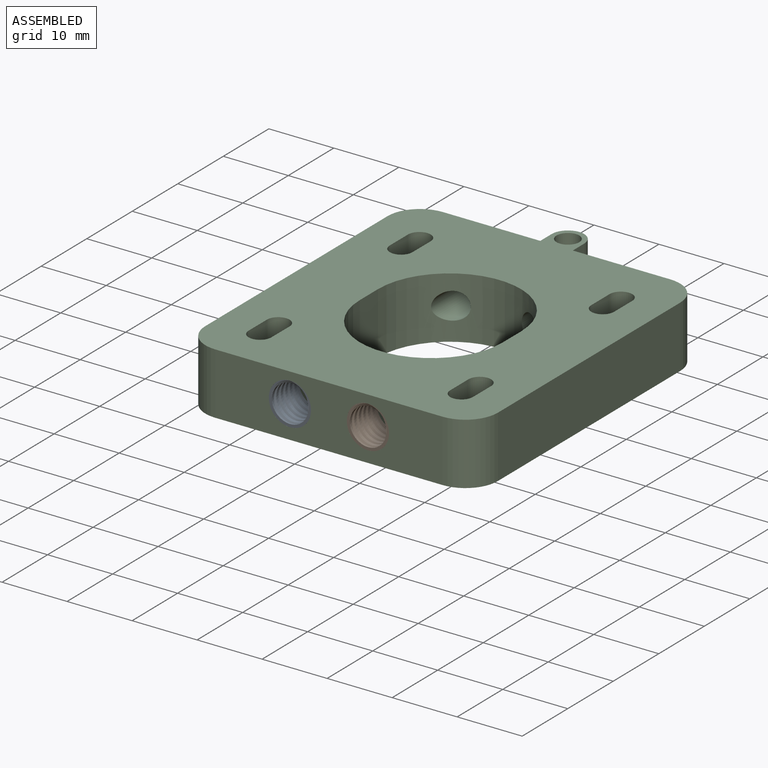
[diagram: assembled view]
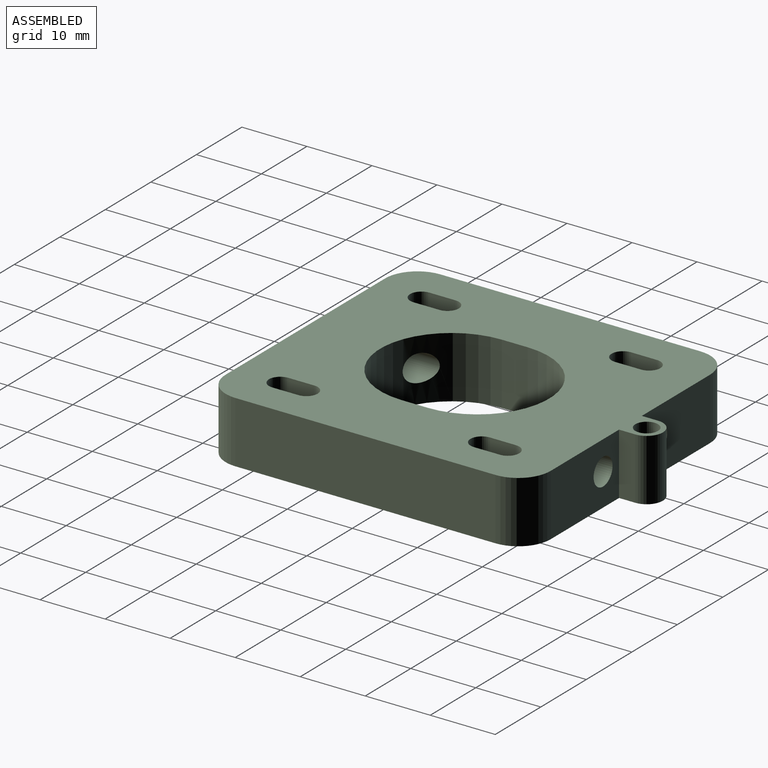
[diagram: assembled view, second angle]
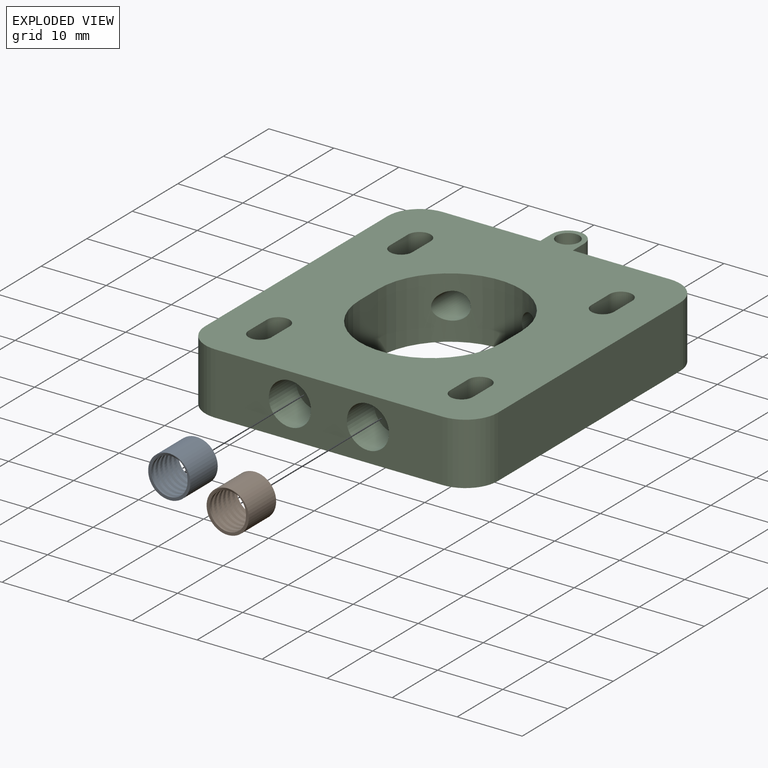
[diagram: exploded view]
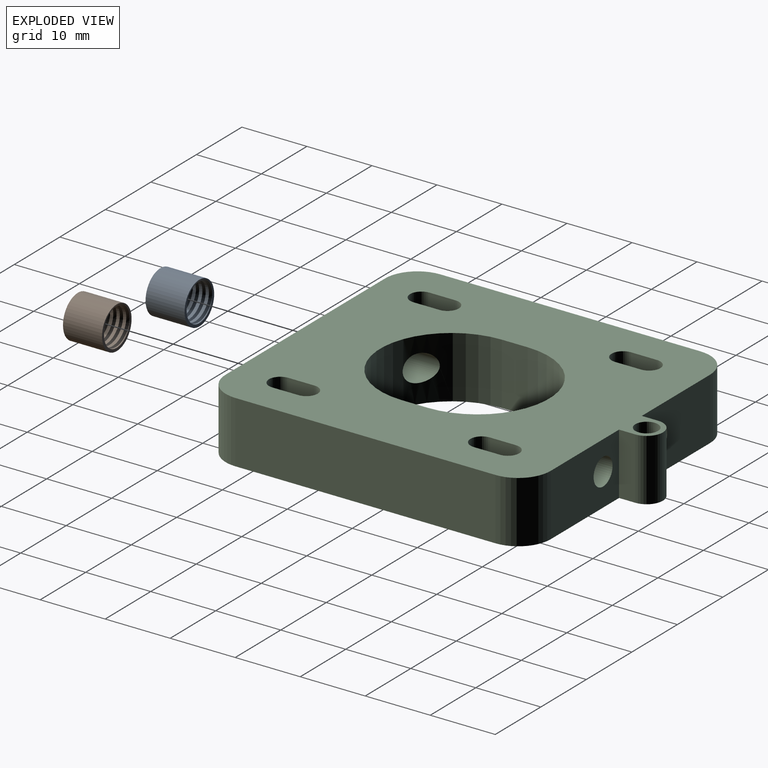
[diagram: exploded view, second angle]
ASSEMBLY  parts=3 mates=2
PART A: 6 faces, bbox 6.7x7.6x6.8 mm
  f0: cylinder r=2.8mm len=6mm, axis (0,0,-1), area 52.8mm2, adj f2,f3,f4,f5
  f1: cylinder r=3.25mm len=6.5mm, axis (0,0,-1), area 122.5mm2, adj f2,f3
  f2: plane 6.66x6.66mm, normal (0,0,1), area 6.6mm2, adj f0,f1,f4,f5
  f3: plane 6.66x6.66mm, normal (0,0,-1), area 6.6mm2, adj f0,f1,f4,f5
  f4: bspline ~7.47x6.58mm, area 57mm2, adj f0,f2,f3,f5
  f5: bspline ~7.47x6.58mm, area 56.9mm2, adj f0,f2,f3,f4
PART B: same geometry as A
PART C: 43 faces, bbox 45x55x9.5 mm
  f0: cylinder r=2.08mm len=9.03mm, axis (0,1,0), area 97.2mm2, adj f33,f41
  f1: cylinder r=2.08mm len=9.03mm, axis (0,1,0), area 97.2mm2, adj f33,f39
  f2: cylinder r=1.75mm len=9.5mm, axis (0,0,-1), area 52.2mm2, adj f3,f34,f35,f36
  f3: plane 9.5x4mm, normal (-1,0,0), area 38mm2, adj f2,f4,f35,f36
  f4: cylinder r=1.75mm len=9.5mm, axis (0,0,-1), area 52.2mm2, adj f3,f34,f35,f36
  f5: cylinder r=1.75mm len=9.5mm, axis (0,0,-1), area 52.2mm2, adj f6,f28,f35,f36
  f6: plane 9.5x4mm, normal (-1,0,0), area 38mm2, adj f5,f7,f35,f36
  f7: cylinder r=1.75mm len=9.5mm, axis (0,0,-1), area 52.2mm2, adj f6,f28,f35,f36
  f8: cylinder r=1.75mm len=9.5mm, axis (0,0,-1), area 52.2mm2, adj f9,f29,f35,f36
  f9: plane 9.5x4mm, normal (-1,0,0), area 38mm2, adj f8,f10,f35,f36
  f10: cylinder r=1.75mm len=9.5mm, axis (0,0,-1), area 52.2mm2, adj f9,f29,f35,f36
  f11: plane 40x9.5mm, normal (-1,0,0), area 380mm2, adj f12,f31,f35,f36
  f12: cylinder r=5mm len=9.5mm, axis (0,0,-1), area 74.6mm2, adj f11,f13,f35,f36
  f13: plane 35x9.5mm, normal (0,-1,0), area 266.1mm2, adj f12,f14,f35,f36,f40,f42
  f14: cylinder r=5mm len=9.5mm, axis (0,0,-1), area 74.6mm2, adj f13,f15,f35,f36
  f15: plane 40x9.5mm, normal (1,0,0), area 380mm2, adj f14,f16,f35,f36
  f16: cylinder r=5mm len=9.5mm, axis (0,0,-1), area 74.6mm2, adj f15,f17,f35,f36
  f17: plane 15x9.5mm, normal (0,1,0), area 129mm2, adj f16,f18,f35,f36,f37
  f18: plane 9.5x2.5mm, normal (1,0,0), area 23.7mm2, adj f17,f19,f35,f36
  f19: cylinder r=2.5mm len=9.5mm, axis (0,0,-1), area 74.6mm2, adj f18,f20,f35,f36
  f20: plane 9.5x2.5mm, normal (-1,0,0), area 23.7mm2, adj f19,f21,f35,f36
  f21: plane 15x9.5mm, normal (0,1,0), area 129mm2, adj f20,f31,f35,f36,f38
  f22: plane 9.5x4mm, normal (1,0,0), area 38mm2, adj f23,f32,f35,f36
  f23: cylinder r=1.75mm len=9.5mm, axis (0,0,-1), area 52.2mm2, adj f22,f24,f35,f36
  f24: plane 9.5x4mm, normal (-1,0,0), area 38mm2, adj f23,f32,f35,f36
  f25: plane 9.5x4mm, normal (1,0,0), area 38mm2, adj f26,f33,f35,f36
  f26: cylinder r=11mm len=22mm, axis (0,0,-1), area 295.5mm2, adj f25,f27,f35,f36,f37,f38
  f27: plane 9.5x4mm, normal (-1,0,0), area 38mm2, adj f26,f33,f35,f36
  f28: plane 9.5x4mm, normal (1,0,0), area 38mm2, adj f5,f7,f35,f36
  f29: plane 9.5x4mm, normal (1,0,0), area 38mm2, adj f8,f10,f35,f36
  f30: cylinder r=1.75mm len=9.5mm, axis (0,0,-1), area 104.5mm2, adj f35,f36
  f31: cylinder r=5mm len=9.5mm, axis (0,0,-1), area 74.6mm2, adj f11,f21,f35,f36
  f32: cylinder r=1.75mm len=9.5mm, axis (0,0,-1), area 52.2mm2, adj f22,f24,f35,f36
  f33: cylinder r=11mm len=22mm, axis (0,0,-1), area 295.5mm2, adj f0,f1,f25,f27,f35,f36
  f34: plane 9.5x4mm, normal (1,0,0), area 38mm2, adj f2,f4,f35,f36
  f35: plane 55x45mm, normal (0,0,1), area 1678.6mm2, adj f2,f3,f4,f5,f6,f7,f8,f9
  f36: plane 55x45mm, normal (0,0,-1), area 1678.6mm2, adj f2,f3,f4,f5,f6,f7,f8,f9
  f37: cylinder r=2.08mm len=16.03mm, axis (0,1,0), area 188.4mm2, adj f17,f26
  f38: cylinder r=2.08mm len=16.03mm, axis (0,1,0), area 188.4mm2, adj f21,f26
  f39: plane 6.5x6.5mm, normal (0,-1,0), area 19.7mm2, adj f1,f40
  f40: cylinder r=3.25mm len=6.5mm, axis (0,1,0), area 122.5mm2, adj f13,f39
  f41: plane 6.5x6.5mm, normal (0,-1,0), area 19.7mm2, adj f0,f42
  f42: cylinder r=3.25mm len=6.5mm, axis (0,1,0), area 122.5mm2, adj f13,f41
PLACE A rot(axis=(1,0,0),90deg) t=(48.24,-0.33,22.26)mm
PLACE B rot(axis=(1,0,0),90deg) t=(60.24,-0.33,22.26)mm
PLACE C t=(12.7,-6.33,17.26)mm
MATE fastened A.f0 <-> C.f1  axis (0,-1,0) through (6.7,-6.33,22.26)mm
MATE fastened B.f0 <-> C.f0  axis (0,-1,0) through (18.7,-6.33,22.26)mm
